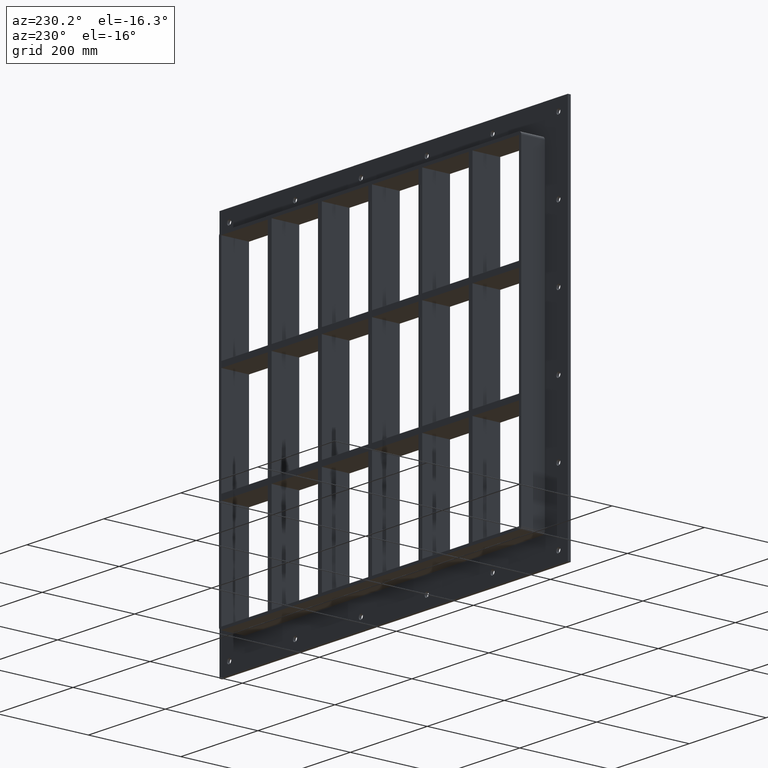
[diagram: clean part render]
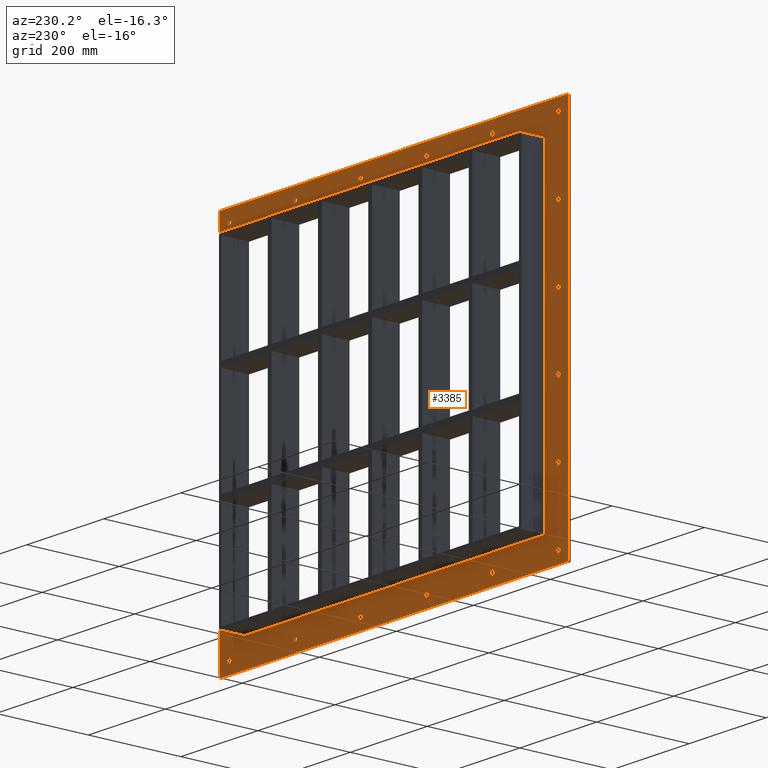
[diagram: same view with one face highlighted and labeled with its STEP entity id]
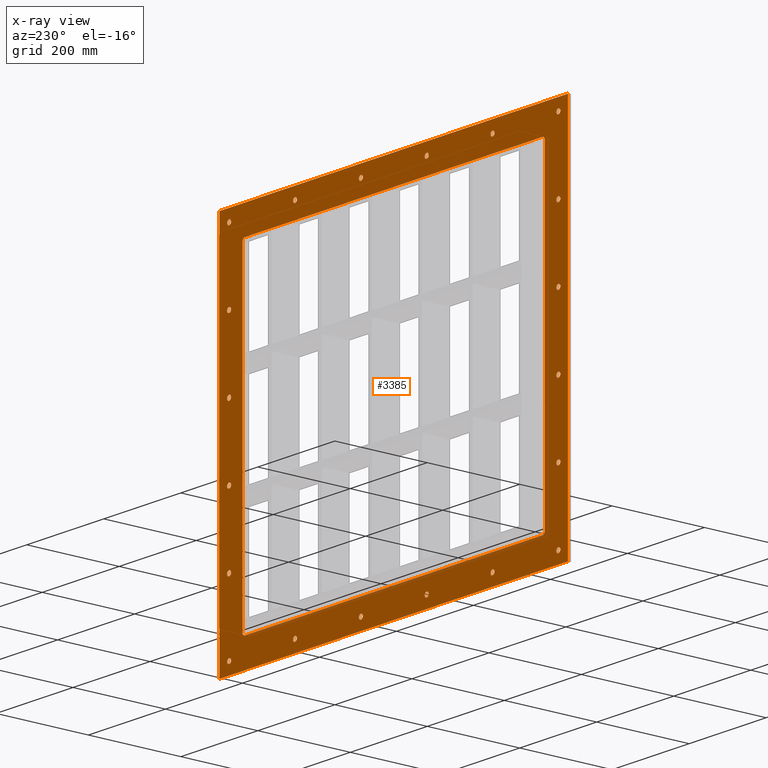
[diagram: x-ray of the same camera — body ghosted, the highlighted face saturated]
A machine part, auxiliary view. The second image highlights one B-rep face of the part: STEP entity #3385.
The next image is the same camera in x-ray: the body ghosted, the highlighted face saturated — about 0% of this face is hidden behind the body in this view.
In plain terms, the highlighted planar face has unit normal (0, 1, 0).
Its self-contained STEP definition (entity closure, byte-faithful):
#73=CARTESIAN_POINT('',(-432.75000000000023,5.999999999999943,-380.00000000000011));
#74=VERTEX_POINT('',#73);
#75=CARTESIAN_POINT('',(-427.50000000000023,5.999999999999943,-380.00000000000011));
#76=DIRECTION('',(0.0,-1.0,0.0));
#77=DIRECTION('',(1.0,0.0,0.0));
#78=AXIS2_PLACEMENT_3D('',#75,#76,#77);
#79=CIRCLE('',#78,5.25);
#80=EDGE_CURVE('',#74,#74,#79,.T.);
#101=CARTESIAN_POINT('',(422.24999999999977,5.999999999999943,-228.00000000000017));
#102=VERTEX_POINT('',#101);
#103=CARTESIAN_POINT('',(427.49999999999977,5.999999999999943,-228.00000000000017));
#104=DIRECTION('',(0.0,-1.0,0.0));
#105=DIRECTION('',(1.0,0.0,0.0));
#106=AXIS2_PLACEMENT_3D('',#103,#104,#105);
#107=CIRCLE('',#106,5.25);
#108=EDGE_CURVE('',#102,#102,#107,.T.);
#129=CARTESIAN_POINT('',(-432.75000000000023,5.999999999999943,-228.00000000000017));
#130=VERTEX_POINT('',#129);
#131=CARTESIAN_POINT('',(-427.50000000000023,5.999999999999943,-228.00000000000017));
#132=DIRECTION('',(0.0,-1.0,0.0));
#133=DIRECTION('',(1.0,0.0,0.0));
#134=AXIS2_PLACEMENT_3D('',#131,#132,#133);
#135=CIRCLE('',#134,5.25);
#136=EDGE_CURVE('',#130,#130,#135,.T.);
#157=CARTESIAN_POINT('',(422.24999999999977,5.999999999999943,-76.000000000000142));
#158=VERTEX_POINT('',#157);
#159=CARTESIAN_POINT('',(427.49999999999977,5.999999999999943,-76.000000000000142));
#160=DIRECTION('',(0.0,-1.0,0.0));
#161=DIRECTION('',(1.0,0.0,0.0));
#162=AXIS2_PLACEMENT_3D('',#159,#160,#161);
#163=CIRCLE('',#162,5.25);
#164=EDGE_CURVE('',#158,#158,#163,.T.);
#185=CARTESIAN_POINT('',(-432.75000000000023,5.999999999999943,-76.000000000000142));
#186=VERTEX_POINT('',#185);
#187=CARTESIAN_POINT('',(-427.50000000000023,5.999999999999943,-76.000000000000142));
#188=DIRECTION('',(0.0,-1.0,0.0));
#189=DIRECTION('',(1.0,0.0,0.0));
#190=AXIS2_PLACEMENT_3D('',#187,#188,#189);
#191=CIRCLE('',#190,5.25);
#192=EDGE_CURVE('',#186,#186,#191,.T.);
#213=CARTESIAN_POINT('',(422.24999999999977,5.999999999999943,75.999999999999815));
#214=VERTEX_POINT('',#213);
#215=CARTESIAN_POINT('',(427.49999999999977,5.999999999999943,75.999999999999815));
#216=DIRECTION('',(0.0,-1.0,0.0));
#217=DIRECTION('',(1.0,0.0,0.0));
#218=AXIS2_PLACEMENT_3D('',#215,#216,#217);
#219=CIRCLE('',#218,5.25);
#220=EDGE_CURVE('',#214,#214,#219,.T.);
#241=CARTESIAN_POINT('',(-432.75000000000023,5.999999999999943,75.999999999999815));
#242=VERTEX_POINT('',#241);
#243=CARTESIAN_POINT('',(-427.50000000000023,5.999999999999943,75.999999999999815));
#244=DIRECTION('',(0.0,-1.0,0.0));
#245=DIRECTION('',(1.0,0.0,0.0));
#246=AXIS2_PLACEMENT_3D('',#243,#244,#245);
#247=CIRCLE('',#246,5.25);
#248=EDGE_CURVE('',#242,#242,#247,.T.);
#269=CARTESIAN_POINT('',(422.24999999999977,5.999999999999943,227.99999999999983));
#270=VERTEX_POINT('',#269);
#271=CARTESIAN_POINT('',(427.49999999999977,5.999999999999943,227.99999999999983));
#272=DIRECTION('',(0.0,-1.0,0.0));
#273=DIRECTION('',(1.0,0.0,0.0));
#274=AXIS2_PLACEMENT_3D('',#271,#272,#273);
#275=CIRCLE('',#274,5.25);
#276=EDGE_CURVE('',#270,#270,#275,.T.);
#297=CARTESIAN_POINT('',(-432.75000000000023,5.999999999999943,227.99999999999983));
#298=VERTEX_POINT('',#297);
#299=CARTESIAN_POINT('',(-427.50000000000023,5.999999999999943,227.99999999999983));
#300=DIRECTION('',(0.0,-1.0,0.0));
#301=DIRECTION('',(1.0,0.0,0.0));
#302=AXIS2_PLACEMENT_3D('',#299,#300,#301);
#303=CIRCLE('',#302,5.25);
#304=EDGE_CURVE('',#298,#298,#303,.T.);
#325=CARTESIAN_POINT('',(-261.75000000000023,5.999999999999943,379.99999999999989));
#326=VERTEX_POINT('',#325);
#327=CARTESIAN_POINT('',(-256.50000000000028,5.999999999999943,379.99999999999989));
#328=DIRECTION('',(0.0,-1.0,0.0));
#329=DIRECTION('',(1.0,0.0,0.0));
#330=AXIS2_PLACEMENT_3D('',#327,#328,#329);
#331=CIRCLE('',#330,5.25);
#332=EDGE_CURVE('',#326,#326,#331,.T.);
#353=CARTESIAN_POINT('',(-261.75000000000017,5.999999999999943,-380.00000000000011));
#354=VERTEX_POINT('',#353);
#355=CARTESIAN_POINT('',(-256.50000000000023,5.999999999999943,-380.00000000000011));
#356=DIRECTION('',(0.0,-1.0,0.0));
#357=DIRECTION('',(1.0,0.0,0.0));
#358=AXIS2_PLACEMENT_3D('',#355,#356,#357);
#359=CIRCLE('',#358,5.25);
#360=EDGE_CURVE('',#354,#354,#359,.T.);
#381=CARTESIAN_POINT('',(-90.750000000000242,5.999999999999943,379.99999999999989));
#382=VERTEX_POINT('',#381);
#383=CARTESIAN_POINT('',(-85.500000000000256,5.999999999999943,379.99999999999989));
#384=DIRECTION('',(0.0,-1.0,0.0));
#385=DIRECTION('',(1.0,0.0,0.0));
#386=AXIS2_PLACEMENT_3D('',#383,#384,#385);
#387=CIRCLE('',#386,5.25);
#388=EDGE_CURVE('',#382,#382,#387,.T.);
#409=CARTESIAN_POINT('',(-90.750000000000171,5.999999999999943,-380.00000000000011));
#410=VERTEX_POINT('',#409);
#411=CARTESIAN_POINT('',(-85.500000000000185,5.999999999999943,-380.00000000000011));
#412=DIRECTION('',(0.0,-1.0,0.0));
#413=DIRECTION('',(1.0,0.0,0.0));
#414=AXIS2_PLACEMENT_3D('',#411,#412,#413);
#415=CIRCLE('',#414,5.25);
#416=EDGE_CURVE('',#410,#410,#415,.T.);
#437=CARTESIAN_POINT('',(80.249999999999773,5.999999999999943,379.99999999999989));
#438=VERTEX_POINT('',#437);
#439=CARTESIAN_POINT('',(85.499999999999758,5.999999999999943,379.99999999999989));
#440=DIRECTION('',(0.0,-1.0,0.0));
#441=DIRECTION('',(1.0,0.0,0.0));
#442=AXIS2_PLACEMENT_3D('',#439,#440,#441);
#443=CIRCLE('',#442,5.25);
#444=EDGE_CURVE('',#438,#438,#443,.T.);
#465=CARTESIAN_POINT('',(80.249999999999844,5.999999999999943,-380.00000000000011));
#466=VERTEX_POINT('',#465);
#467=CARTESIAN_POINT('',(85.499999999999829,5.999999999999943,-380.00000000000011));
#468=DIRECTION('',(0.0,-1.0,0.0));
#469=DIRECTION('',(1.0,0.0,0.0));
#470=AXIS2_PLACEMENT_3D('',#467,#468,#469);
#471=CIRCLE('',#470,5.25);
#472=EDGE_CURVE('',#466,#466,#471,.T.);
#493=CARTESIAN_POINT('',(251.24999999999977,5.999999999999943,379.99999999999989));
#494=VERTEX_POINT('',#493);
#495=CARTESIAN_POINT('',(256.49999999999977,5.999999999999943,379.99999999999989));
#496=DIRECTION('',(0.0,-1.0,0.0));
#497=DIRECTION('',(1.0,0.0,0.0));
#498=AXIS2_PLACEMENT_3D('',#495,#496,#497);
#499=CIRCLE('',#498,5.25);
#500=EDGE_CURVE('',#494,#494,#499,.T.);
#521=CARTESIAN_POINT('',(251.24999999999986,5.999999999999943,-380.00000000000011));
#522=VERTEX_POINT('',#521);
#523=CARTESIAN_POINT('',(256.49999999999983,5.999999999999943,-380.00000000000011));
#524=DIRECTION('',(0.0,-1.0,0.0));
#525=DIRECTION('',(1.0,0.0,0.0));
#526=AXIS2_PLACEMENT_3D('',#523,#524,#525);
#527=CIRCLE('',#526,5.25);
#528=EDGE_CURVE('',#522,#522,#527,.T.);
#549=CARTESIAN_POINT('',(422.24999999999989,5.999999999999943,-380.00000000000011));
#550=VERTEX_POINT('',#549);
#551=CARTESIAN_POINT('',(427.49999999999989,5.999999999999943,-380.00000000000011));
#552=DIRECTION('',(0.0,-1.0,0.0));
#553=DIRECTION('',(1.0,0.0,0.0));
#554=AXIS2_PLACEMENT_3D('',#551,#552,#553);
#555=CIRCLE('',#554,5.25);
#556=EDGE_CURVE('',#550,#550,#555,.T.);
#577=CARTESIAN_POINT('',(-432.75000000000023,5.999999999999943,379.99999999999989));
#578=VERTEX_POINT('',#577);
#579=CARTESIAN_POINT('',(-427.50000000000023,5.999999999999943,379.99999999999989));
#580=DIRECTION('',(0.0,-1.0,0.0));
#581=DIRECTION('',(1.0,0.0,0.0));
#582=AXIS2_PLACEMENT_3D('',#579,#580,#581);
#583=CIRCLE('',#582,5.25);
#584=EDGE_CURVE('',#578,#578,#583,.T.);
#605=CARTESIAN_POINT('',(422.24999999999977,5.999999999999943,379.99999999999989));
#606=VERTEX_POINT('',#605);
#607=CARTESIAN_POINT('',(427.49999999999977,5.999999999999943,379.99999999999989));
#608=DIRECTION('',(0.0,-1.0,0.0));
#609=DIRECTION('',(1.0,0.0,0.0));
#610=AXIS2_PLACEMENT_3D('',#607,#608,#609);
#611=CIRCLE('',#610,5.25);
#612=EDGE_CURVE('',#606,#606,#611,.T.);
#3216=CARTESIAN_POINT('',(0.0,6.000000000000001,-3.977382E-014));
#3217=DIRECTION('',(0.0,1.0,0.0));
#3218=DIRECTION('',(0.0,0.0,1.0));
#3219=AXIS2_PLACEMENT_3D('',#3216,#3217,#3218);
#3220=PLANE('',#3219);
#3221=CARTESIAN_POINT('',(-452.50000000000006,6.000000000000001,405.00000000000006));
#3222=VERTEX_POINT('',#3221);
#3223=CARTESIAN_POINT('',(452.50000000000006,6.000000000000001,405.00000000000006));
#3224=VERTEX_POINT('',#3223);
#3225=CARTESIAN_POINT('',(-452.50000000000006,6.000000000000001,405.00000000000006));
#3226=DIRECTION('',(1.0,0.0,0.0));
#3227=VECTOR('',#3226,905.00000000000011);
#3228=LINE('',#3225,#3227);
#3229=EDGE_CURVE('',#3222,#3224,#3228,.T.);
#3230=ORIENTED_EDGE('',*,*,#3229,.T.);
#3231=CARTESIAN_POINT('',(452.50000000000006,6.000000000000001,-405.00000000000023));
#3232=VERTEX_POINT('',#3231);
#3233=CARTESIAN_POINT('',(452.50000000000006,6.000000000000001,405.00000000000006));
#3234=DIRECTION('',(0.0,0.0,-1.0));
#3235=VECTOR('',#3234,810.00000000000023);
#3236=LINE('',#3233,#3235);
#3237=EDGE_CURVE('',#3224,#3232,#3236,.T.);
#3238=ORIENTED_EDGE('',*,*,#3237,.T.);
#3239=CARTESIAN_POINT('',(-452.50000000000006,6.000000000000001,-405.00000000000023));
#3240=VERTEX_POINT('',#3239);
#3241=CARTESIAN_POINT('',(452.50000000000006,6.000000000000001,-405.00000000000011));
#3242=DIRECTION('',(-1.0,0.0,0.0));
#3243=VECTOR('',#3242,905.00000000000011);
#3244=LINE('',#3241,#3243);
#3245=EDGE_CURVE('',#3232,#3240,#3244,.T.);
#3246=ORIENTED_EDGE('',*,*,#3245,.T.);
#3247=CARTESIAN_POINT('',(-452.50000000000006,6.000000000000001,-405.00000000000011));
#3248=DIRECTION('',(0.0,0.0,1.0));
#3249=VECTOR('',#3248,810.00000000000023);
#3250=LINE('',#3247,#3249);
#3251=EDGE_CURVE('',#3240,#3222,#3250,.T.);
#3252=ORIENTED_EDGE('',*,*,#3251,.T.);
#3253=EDGE_LOOP('',(#3230,#3238,#3246,#3252));
#3254=FACE_OUTER_BOUND('',#3253,.T.);
#3255=ORIENTED_EDGE('',*,*,#80,.T.);
#3256=EDGE_LOOP('',(#3255));
#3257=FACE_BOUND('',#3256,.T.);
#3258=ORIENTED_EDGE('',*,*,#108,.T.);
#3259=EDGE_LOOP('',(#3258));
#3260=FACE_BOUND('',#3259,.T.);
#3261=ORIENTED_EDGE('',*,*,#136,.T.);
#3262=EDGE_LOOP('',(#3261));
#3263=FACE_BOUND('',#3262,.T.);
#3264=ORIENTED_EDGE('',*,*,#164,.T.);
#3265=EDGE_LOOP('',(#3264));
#3266=FACE_BOUND('',#3265,.T.);
#3267=ORIENTED_EDGE('',*,*,#192,.T.);
#3268=EDGE_LOOP('',(#3267));
#3269=FACE_BOUND('',#3268,.T.);
#3270=ORIENTED_EDGE('',*,*,#220,.T.);
#3271=EDGE_LOOP('',(#3270));
#3272=FACE_BOUND('',#3271,.T.);
#3273=ORIENTED_EDGE('',*,*,#248,.T.);
#3274=EDGE_LOOP('',(#3273));
#3275=FACE_BOUND('',#3274,.T.);
#3276=ORIENTED_EDGE('',*,*,#276,.T.);
#3277=EDGE_LOOP('',(#3276));
#3278=FACE_BOUND('',#3277,.T.);
#3279=ORIENTED_EDGE('',*,*,#304,.T.);
#3280=EDGE_LOOP('',(#3279));
#3281=FACE_BOUND('',#3280,.T.);
#3282=ORIENTED_EDGE('',*,*,#332,.T.);
#3283=EDGE_LOOP('',(#3282));
#3284=FACE_BOUND('',#3283,.T.);
#3285=ORIENTED_EDGE('',*,*,#360,.T.);
#3286=EDGE_LOOP('',(#3285));
#3287=FACE_BOUND('',#3286,.T.);
#3288=ORIENTED_EDGE('',*,*,#388,.T.);
#3289=EDGE_LOOP('',(#3288));
#3290=FACE_BOUND('',#3289,.T.);
#3291=ORIENTED_EDGE('',*,*,#416,.T.);
#3292=EDGE_LOOP('',(#3291));
#3293=FACE_BOUND('',#3292,.T.);
#3294=ORIENTED_EDGE('',*,*,#444,.T.);
#3295=EDGE_LOOP('',(#3294));
#3296=FACE_BOUND('',#3295,.T.);
#3297=ORIENTED_EDGE('',*,*,#472,.T.);
#3298=EDGE_LOOP('',(#3297));
#3299=FACE_BOUND('',#3298,.T.);
#3300=ORIENTED_EDGE('',*,*,#500,.T.);
#3301=EDGE_LOOP('',(#3300));
#3302=FACE_BOUND('',#3301,.T.);
#3303=ORIENTED_EDGE('',*,*,#528,.T.);
#3304=EDGE_LOOP('',(#3303));
#3305=FACE_BOUND('',#3304,.T.);
#3306=ORIENTED_EDGE('',*,*,#556,.T.);
#3307=EDGE_LOOP('',(#3306));
#3308=FACE_BOUND('',#3307,.T.);
#3309=ORIENTED_EDGE('',*,*,#584,.T.);
#3310=EDGE_LOOP('',(#3309));
#3311=FACE_BOUND('',#3310,.T.);
#3312=ORIENTED_EDGE('',*,*,#612,.T.);
#3313=EDGE_LOOP('',(#3312));
#3314=FACE_BOUND('',#3313,.T.);
#3315=CARTESIAN_POINT('',(-386.50000000000006,6.000000000000001,-345.00000000000011));
#3316=VERTEX_POINT('',#3315);
#3317=CARTESIAN_POINT('',(-392.50000000000006,6.000000000000001,-339.00000000000023));
#3318=VERTEX_POINT('',#3317);
#3319=CARTESIAN_POINT('',(-386.50000000000006,6.000000000000001,-339.00000000000023));
#3320=DIRECTION('',(0.0,1.0,0.0));
#3321=DIRECTION('',(-0.707106781186548,0.0,-0.707106781186548));
#3322=AXIS2_PLACEMENT_3D('',#3319,#3320,#3321);
#3323=CIRCLE('',#3322,6.000000000000002);
#3324=EDGE_CURVE('',#3316,#3318,#3323,.T.);
#3325=ORIENTED_EDGE('',*,*,#3324,.F.);
#3326=CARTESIAN_POINT('',(386.50000000000006,6.000000000000001,-345.00000000000011));
#3327=VERTEX_POINT('',#3326);
#3328=CARTESIAN_POINT('',(386.50000000000006,6.000000000000001,-345.00000000000011));
#3329=DIRECTION('',(-1.0,0.0,0.0));
#3330=VECTOR('',#3329,773.0);
#3331=LINE('',#3328,#3330);
#3332=EDGE_CURVE('',#3327,#3316,#3331,.T.);
#3333=ORIENTED_EDGE('',*,*,#3332,.F.);
#3334=CARTESIAN_POINT('',(392.50000000000006,6.000000000000001,-339.00000000000006));
#3335=VERTEX_POINT('',#3334);
#3336=CARTESIAN_POINT('',(386.50000000000006,6.000000000000001,-339.00000000000006));
#3337=DIRECTION('',(0.0,1.0,0.0));
#3338=DIRECTION('',(0.707106781186539,0.0,-0.707106781186556));
#3339=AXIS2_PLACEMENT_3D('',#3336,#3337,#3338);
#3340=CIRCLE('',#3339,6.000000000000001);
#3341=EDGE_CURVE('',#3335,#3327,#3340,.T.);
#3342=ORIENTED_EDGE('',*,*,#3341,.F.);
#3343=CARTESIAN_POINT('',(392.50000000000006,6.000000000000001,339.0));
#3344=VERTEX_POINT('',#3343);
#3345=CARTESIAN_POINT('',(392.50000000000006,6.000000000000001,339.0));
#3346=DIRECTION('',(0.0,0.0,-1.0));
#3347=VECTOR('',#3346,678.00000000000011);
#3348=LINE('',#3345,#3347);
#3349=EDGE_CURVE('',#3344,#3335,#3348,.T.);
#3350=ORIENTED_EDGE('',*,*,#3349,.F.);
#3351=CARTESIAN_POINT('',(386.50000000000006,6.000000000000001,345.0));
#3352=VERTEX_POINT('',#3351);
#3353=CARTESIAN_POINT('',(386.50000000000006,6.000000000000001,339.0));
#3354=DIRECTION('',(0.0,1.0,0.0));
#3355=DIRECTION('',(0.707106781186539,0.0,0.707106781186556));
#3356=AXIS2_PLACEMENT_3D('',#3353,#3354,#3355);
#3357=CIRCLE('',#3356,6.000000000000001);
#3358=EDGE_CURVE('',#3352,#3344,#3357,.T.);
#3359=ORIENTED_EDGE('',*,*,#3358,.F.);
#3360=CARTESIAN_POINT('',(-386.50000000000006,6.000000000000001,345.0));
#3361=VERTEX_POINT('',#3360);
#3362=CARTESIAN_POINT('',(-386.50000000000006,6.000000000000001,345.0));
#3363=DIRECTION('',(1.0,0.0,0.0));
#3364=VECTOR('',#3363,773.0);
#3365=LINE('',#3362,#3364);
#3366=EDGE_CURVE('',#3361,#3352,#3365,.T.);
#3367=ORIENTED_EDGE('',*,*,#3366,.F.);
#3368=CARTESIAN_POINT('',(-392.50000000000006,6.000000000000001,338.99999999999989));
#3369=VERTEX_POINT('',#3368);
#3370=CARTESIAN_POINT('',(-386.50000000000006,6.000000000000001,338.99999999999989));
#3371=DIRECTION('',(0.0,1.0,0.0));
#3372=DIRECTION('',(-0.707106781186539,0.0,0.707106781186556));
#3373=AXIS2_PLACEMENT_3D('',#3370,#3371,#3372);
#3374=CIRCLE('',#3373,6.000000000000001);
#3375=EDGE_CURVE('',#3369,#3361,#3374,.T.);
#3376=ORIENTED_EDGE('',*,*,#3375,.F.);
#3377=CARTESIAN_POINT('',(-392.50000000000006,6.000000000000001,-339.00000000000023));
#3378=DIRECTION('',(0.0,0.0,1.0));
#3379=VECTOR('',#3378,678.00000000000023);
#3380=LINE('',#3377,#3379);
#3381=EDGE_CURVE('',#3318,#3369,#3380,.T.);
#3382=ORIENTED_EDGE('',*,*,#3381,.F.);
#3383=EDGE_LOOP('',(#3325,#3333,#3342,#3350,#3359,#3367,#3376,#3382));
#3384=FACE_BOUND('',#3383,.T.);
#3385=ADVANCED_FACE('',(#3254,#3257,#3260,#3263,#3266,#3269,#3272,#3275,#3278,#3281,#3284,#3287,#3290,#3293,#3296,#3299,#3302,#3305,#3308,#3311,#3314,#3384),#3220,.T.);